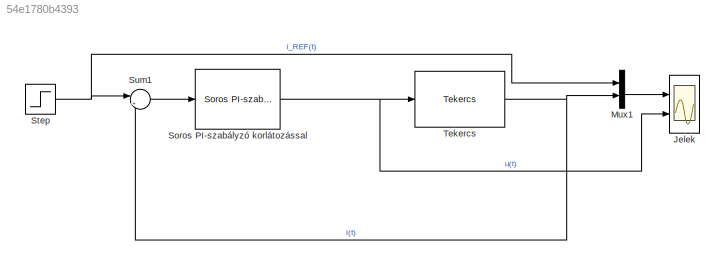
MODEL slx_54e1780b4393
KIND model
CONFIG InitFcn = % Modellparaméterek\nR = 250e-3;\nL = 10e-3;\nPsi_0 = 0.5e-3;\n\ni_0 = 0;\ntheta_0 = 0;\n\n% Rendszerparaméterek\nK = 1/R;\ntau = L/R;\n\n% PI-hangolás\ntau_CL = tau/25;\nxi_CL = 1;\n\nK_PI = (2*xi_CL*tau - tau_CL)/(K*tau_CL);\nT_I = (2*xi_CL*tau - tau_CL)*tau_CL/tau;
BLOCK [Scope] Jelek
  DataFormat = StructureWithTime
  Floating = off
  LegendLocations = 0.86871     0.91797    0.099896    0.040359\n0.89213       0.463    0.075963    0.022795
  LimitDataPoints = off
  NumInputPorts = 2
  Ports = [2]
  SampleTime = 0
  SaveName = ScopeData1
  ShowLegends = on
  TimeRange = 0.02
  YMax = 0.7000000000000001~8
  YMin = 0~-1
  ZoomMode = xonly
BLOCK [Mux] Mux1
  DisplayOption = bar
  Inputs = 2
  Ports = [2, 1]
BLOCK [Reference] Soros PI-szabályzó korlátozással  REF=RI_MK/Soros PI-szabályzó korlátozással
  K_PI = K_PI
  L_L = -5
  L_U = 5
  Ports = [1, 1]
  SourceBlock = RI_MK/Soros PI-szabályzó korlátozással
  SourceType = Soros PI-szabályzó
  T_I = T_I
  T_T = T_I
BLOCK [Step] Step
  After = 0.6
  SampleTime = 0
  Time = 5e-3
BLOCK [Sum] Sum1
  IconShape = round
  InputSameDT = off
  Inputs = |+-
  OutDataTypeStr = Inherit: Inherit via internal rule
  Ports = [2, 1]
  SaturateOnIntegerOverflow = off
BLOCK [Reference] Tekercs  REF=RI_MK/Tekercs
  L = L
  Ports = [1, 1]
  R = R
  SourceBlock = RI_MK/Tekercs
  SourceType = Tekercs
  i_0 = i_0
LINE Mux1:1 -> Jelek:1
NET Soros PI-szabályzó korlátozással:1 -> Jelek:2, Tekercs:1
NET Step:1 -> Mux1:1, Sum1:1
LINE Sum1:1 -> Soros PI-szabályzó korlátozással:1
NET Tekercs:1 -> Mux1:2, Sum1:2
note: NET lines group one-source signal fan-out (src -> all destinations, sorted); 1:1 wires keep LINE
